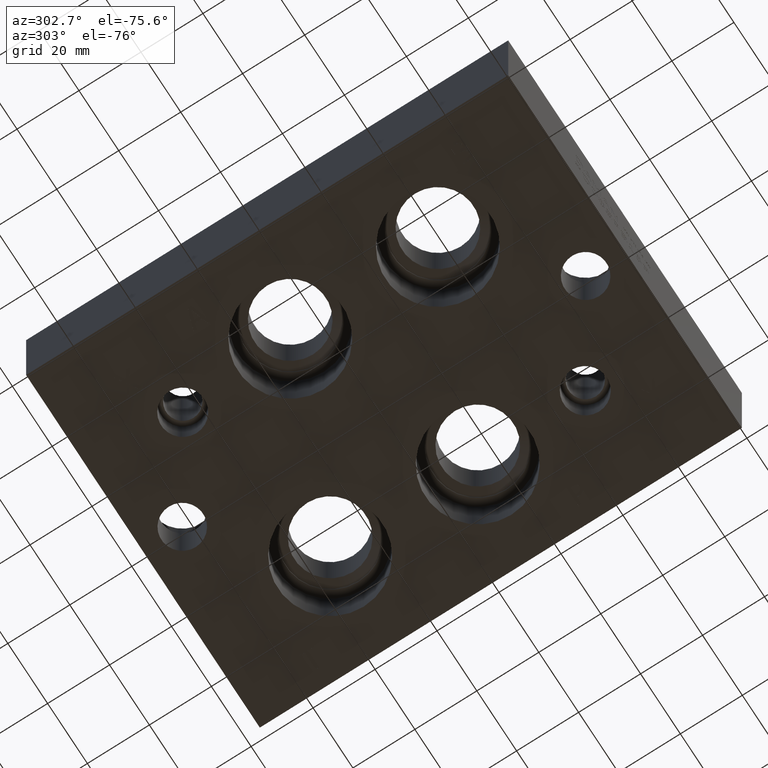
[diagram: clean part render]
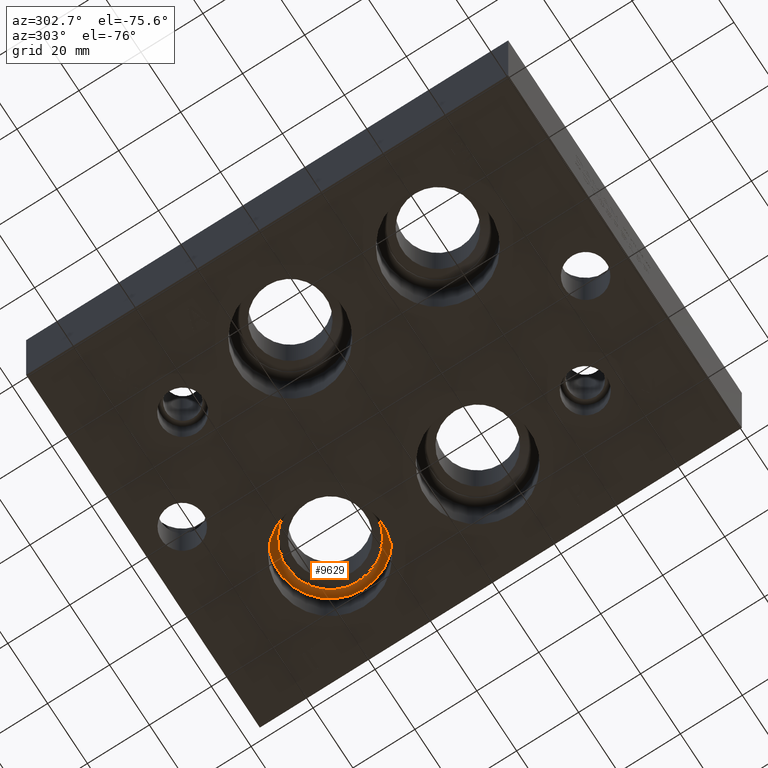
[diagram: same view with one face highlighted and labeled with its STEP entity id]
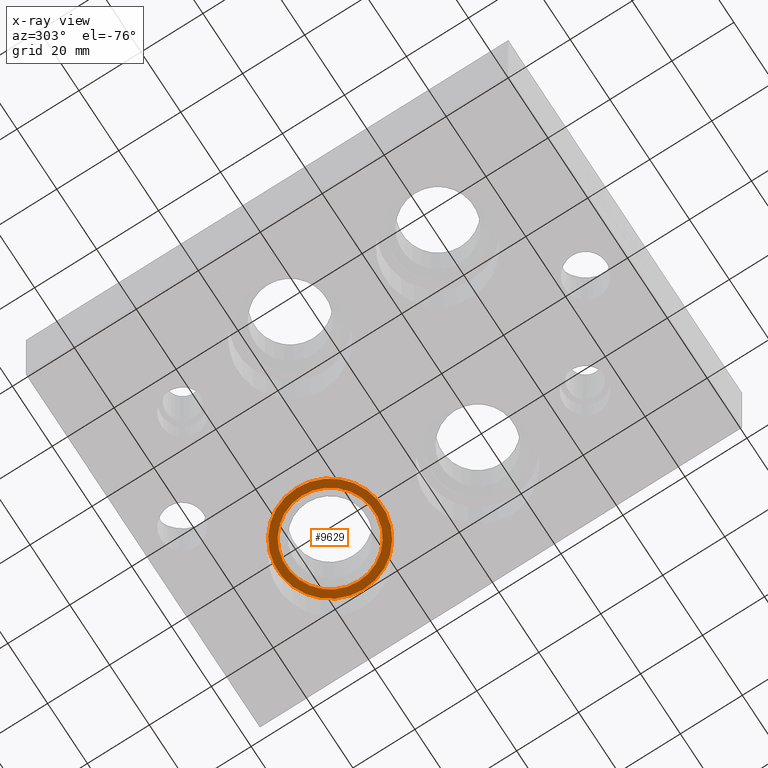
[diagram: x-ray of the same camera — body ghosted, the highlighted face saturated]
A machine part, auxiliary view. The second image highlights one B-rep face of the part: STEP entity #9629.
The next image is the same camera in x-ray: the body ghosted, the highlighted face saturated — about 0% of this face is hidden behind the body in this view.
In plain terms, the highlighted planar face has unit normal (0, 0, -1).
Its self-contained STEP definition (entity closure, byte-faithful):
#83=CIRCLE('',#10023,16.8529);
#84=CIRCLE('',#10024,16.8529);
#85=CIRCLE('',#10025,14.2875);
#226=FACE_BOUND('',#1632,.T.);
#1090=FACE_OUTER_BOUND('',#1631,.T.);
#1631=EDGE_LOOP('',(#8167,#8168));
#1632=EDGE_LOOP('',(#8169));
#4398=VERTEX_POINT('',#16232);
#4399=VERTEX_POINT('',#16233);
#4400=VERTEX_POINT('',#16236);
#5687=EDGE_CURVE('',#4398,#4399,#83,.T.);
#5688=EDGE_CURVE('',#4399,#4398,#84,.T.);
#5689=EDGE_CURVE('',#4400,#4400,#85,.T.);
#8167=ORIENTED_EDGE('',*,*,#5687,.T.);
#8168=ORIENTED_EDGE('',*,*,#5688,.T.);
#8169=ORIENTED_EDGE('',*,*,#5689,.F.);
#8770=PLANE('',#10022);
#9629=ADVANCED_FACE('',(#1090,#226),#8770,.T.);
#10022=AXIS2_PLACEMENT_3D('',#16231,#11707,#11708);
#10023=AXIS2_PLACEMENT_3D('',#16234,#11709,#11710);
#10024=AXIS2_PLACEMENT_3D('',#16235,#11711,#11712);
#10025=AXIS2_PLACEMENT_3D('',#16237,#11713,#11714);
#11707=DIRECTION('center_axis',(0.,0.,-1.));
#11708=DIRECTION('ref_axis',(1.,0.,0.));
#11709=DIRECTION('center_axis',(0.,0.,-1.));
#11710=DIRECTION('ref_axis',(1.,0.,0.));
#11711=DIRECTION('center_axis',(0.,0.,-1.));
#11712=DIRECTION('ref_axis',(1.,0.,0.));
#11713=DIRECTION('center_axis',(0.,0.,-1.));
#11714=DIRECTION('ref_axis',(1.,0.,0.));
#16231=CARTESIAN_POINT('Origin',(87.3252,113.5126,18.9992));
#16232=CARTESIAN_POINT('',(104.1781,113.5126,18.9992));
#16233=CARTESIAN_POINT('',(70.4723,113.5126,18.9992));
#16234=CARTESIAN_POINT('Origin',(87.3252,113.5126,18.9992));
#16235=CARTESIAN_POINT('Origin',(87.3252,113.5126,18.9992));
#16236=CARTESIAN_POINT('',(73.0377,113.5126,18.9992));
#16237=CARTESIAN_POINT('Origin',(87.3252,113.5126,18.9992));